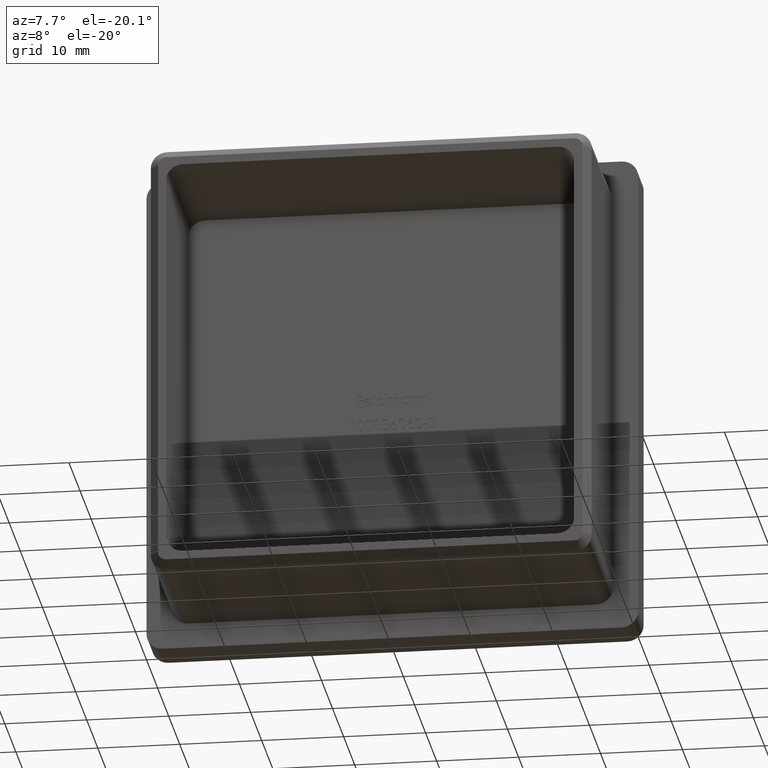
[diagram: clean part render]
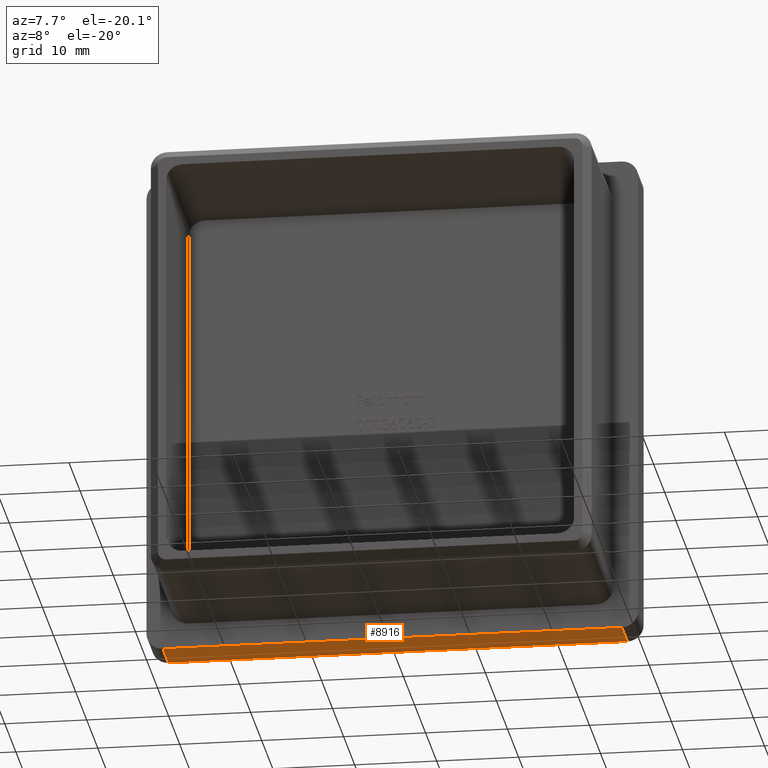
[diagram: same view with one face highlighted and labeled with its STEP entity id]
A machine part, auxiliary view. The second image highlights one B-rep face of the part: STEP entity #8916.
In plain terms, the highlighted planar face has unit normal (0, 0, 1).
Its self-contained STEP definition (entity closure, byte-faithful):
#5 = ORIENTED_EDGE ( 'NONE', *, *, #4463, .T. ) ;
#1006 = EDGE_CURVE ( 'NONE', #6009, #14033, #14151, .T. ) ;
#1289 = CARTESIAN_POINT ( 'NONE',  ( -30.00000000000000400, 5.000000000000000000, -30.00000000000000000 ) ) ;
#1514 = LINE ( 'NONE', #16777, #4147 ) ;
#2177 = LINE ( 'NONE', #13264, #2580 ) ;
#2580 = VECTOR ( 'NONE', #4658, 1000.000000000000000 ) ;
#2952 = CARTESIAN_POINT ( 'NONE',  ( -28.00000000000000400, 5.000000000000000000, -30.00000000000000000 ) ) ;
#3501 = ORIENTED_EDGE ( 'NONE', *, *, #1006, .F. ) ;
#3550 = EDGE_LOOP ( 'NONE', ( #3501, #8809, #15876, #5 ) ) ;
#3891 = CARTESIAN_POINT ( 'NONE',  ( -30.00000000000000400, 5.000000000000000000, -30.00000000000000000 ) ) ;
#4147 = VECTOR ( 'NONE', #10378, 1000.000000000000000 ) ;
#4299 = DIRECTION ( 'NONE',  ( -0.0000000000000000000, 1.000000000000000000, -0.0000000000000000000 ) ) ;
#4414 = VECTOR ( 'NONE', #4299, 1000.000000000000000 ) ;
#4463 = EDGE_CURVE ( 'NONE', #11486, #14033, #8064, .T. ) ;
#4658 = DIRECTION ( 'NONE',  ( -1.000000000000000000, -0.0000000000000000000, -0.0000000000000000000 ) ) ;
#5251 = EDGE_CURVE ( 'NONE', #7037, #11486, #2177, .T. ) ;
#5593 = FACE_OUTER_BOUND ( 'NONE', #3550, .T. ) ;
#6009 = VERTEX_POINT ( 'NONE', #15958 ) ;
#7037 = VERTEX_POINT ( 'NONE', #14870 ) ;
#7144 = CARTESIAN_POINT ( 'NONE',  ( -28.00000000000000400, 5.000000000000000000, -30.00000000000000000 ) ) ;
#8057 = EDGE_CURVE ( 'NONE', #6009, #7037, #1514, .T. ) ;
#8064 = LINE ( 'NONE', #2952, #4414 ) ;
#8800 = CARTESIAN_POINT ( 'NONE',  ( -28.00000000000000400, 0.0000000000000000000, -30.00000000000000000 ) ) ;
#8809 = ORIENTED_EDGE ( 'NONE', *, *, #8057, .T. ) ;
#8916 = ADVANCED_FACE ( 'NONE', ( #5593 ), #11635, .F. ) ;
#9137 = DIRECTION ( 'NONE',  ( -1.000000000000000000, -0.0000000000000000000, -0.0000000000000000000 ) ) ;
#10128 = DIRECTION ( 'NONE',  ( 0.0000000000000000000, 0.0000000000000000000, 1.000000000000000000 ) ) ;
#10378 = DIRECTION ( 'NONE',  ( 0.0000000000000000000, -1.000000000000000000, 0.0000000000000000000 ) ) ;
#11486 = VERTEX_POINT ( 'NONE', #8800 ) ;
#11547 = VECTOR ( 'NONE', #9137, 1000.000000000000000 ) ;
#11635 = PLANE ( 'NONE',  #15843 ) ;
#12934 = DIRECTION ( 'NONE',  ( 1.000000000000000000, 0.0000000000000000000, -0.0000000000000000000 ) ) ;
#13264 = CARTESIAN_POINT ( 'NONE',  ( -30.00000000000000400, 0.0000000000000000000, -30.00000000000000000 ) ) ;
#14033 = VERTEX_POINT ( 'NONE', #7144 ) ;
#14151 = LINE ( 'NONE', #1289, #11547 ) ;
#14870 = CARTESIAN_POINT ( 'NONE',  ( 27.99999999999999300, 0.0000000000000000000, -30.00000000000000000 ) ) ;
#15843 = AXIS2_PLACEMENT_3D ( 'NONE', #3891, #10128, #12934 ) ;
#15876 = ORIENTED_EDGE ( 'NONE', *, *, #5251, .T. ) ;
#15958 = CARTESIAN_POINT ( 'NONE',  ( 27.99999999999999300, 5.000000000000000000, -30.00000000000000000 ) ) ;
#16777 = CARTESIAN_POINT ( 'NONE',  ( 27.99999999999999300, 5.000000000000000000, -30.00000000000000000 ) ) ;